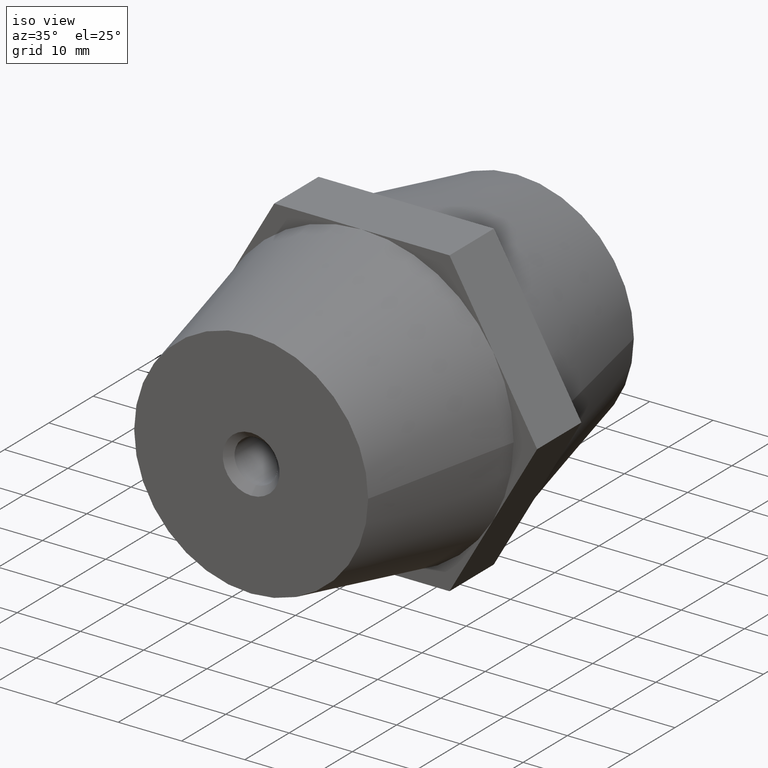
[diagram: clean part render]
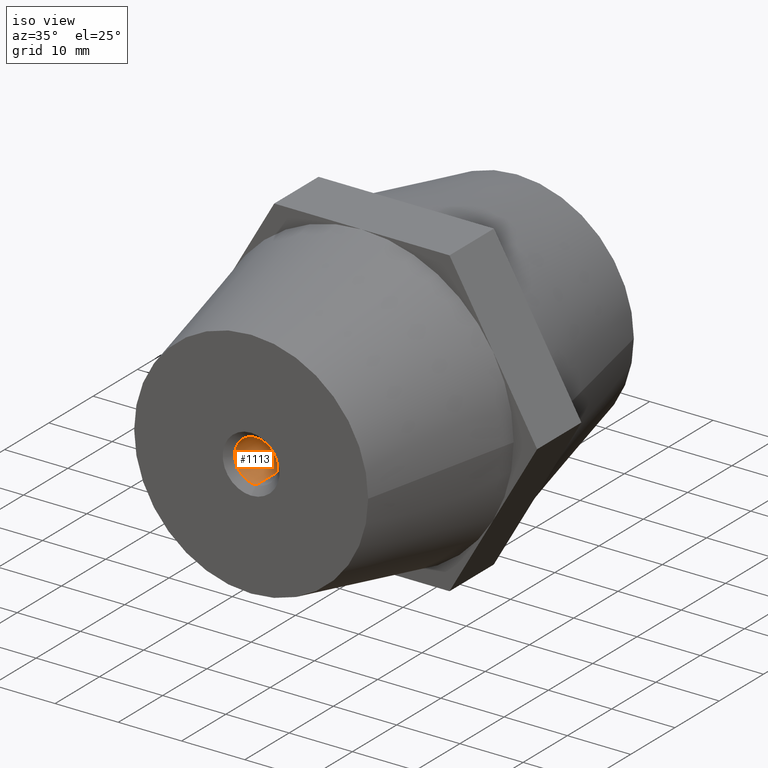
[diagram: same view with one face highlighted and labeled with its STEP entity id]
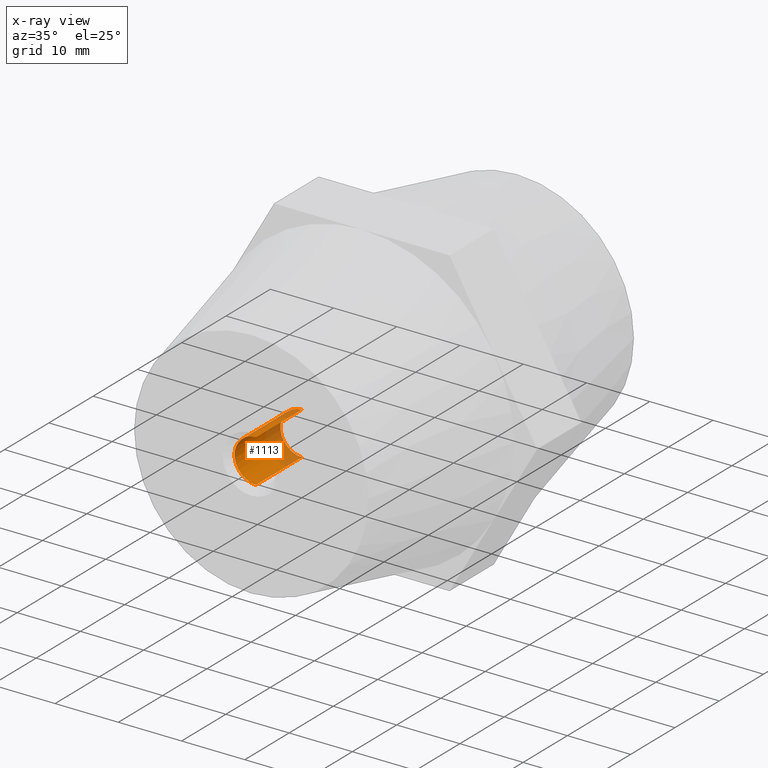
[diagram: x-ray of the same camera — body ghosted, the highlighted face saturated]
A machine part, iso view. The second image highlights one B-rep face of the part: STEP entity #1113.
The next image is the same camera in x-ray: the body ghosted, the highlighted face saturated — about 30% of this face is hidden behind the body in this view.
In plain terms, the highlighted cylindrical surface (edge-blend (fillet) strip) has radius 3.4 mm, axis along (0, -1, -0).
Its self-contained STEP definition (entity closure, byte-faithful):
#3 = CARTESIAN_POINT ( 'NONE',  ( 0.0000000000000000000, 2.540000000000000000, 3.399999999999999900 ) ) ;
#166 = CARTESIAN_POINT ( 'NONE',  ( 4.163799117101000600E-016, 14.00000000000000000, -3.399999999999999900 ) ) ;
#199 = CIRCLE ( 'NONE', #3415, 3.399999999999999900 ) ;
#258 = ORIENTED_EDGE ( 'NONE', *, *, #2852, .F. ) ;
#407 = VECTOR ( 'NONE', #1873, 1000.000000000000000 ) ;
#733 = VERTEX_POINT ( 'NONE', #3653 ) ;
#745 = AXIS2_PLACEMENT_3D ( 'NONE', #1669, #1950, #2252 ) ;
#763 = CYLINDRICAL_SURFACE ( 'NONE', #745, 3.399999999999999900 ) ;
#919 = VERTEX_POINT ( 'NONE', #3 ) ;
#994 = CARTESIAN_POINT ( 'NONE',  ( 0.0000000000000000000, 14.00000000000000000, 3.399999999999999900 ) ) ;
#1066 = EDGE_CURVE ( 'NONE', #919, #733, #2601, .T. ) ;
#1113 = ADVANCED_FACE ( 'NONE', ( #1799 ), #763, .F. ) ;
#1312 = DIRECTION ( 'NONE',  ( 0.0000000000000000000, 0.0000000000000000000, 1.000000000000000000 ) ) ;
#1339 = EDGE_LOOP ( 'NONE', ( #258, #1830, #1461, #2622 ) ) ;
#1461 = ORIENTED_EDGE ( 'NONE', *, *, #3252, .T. ) ;
#1519 = DIRECTION ( 'NONE',  ( 0.0000000000000000000, 1.000000000000000000, 0.0000000000000000000 ) ) ;
#1669 = CARTESIAN_POINT ( 'NONE',  ( 0.0000000000000000000, 14.00000000000000000, 0.0000000000000000000 ) ) ;
#1690 = VERTEX_POINT ( 'NONE', #2931 ) ;
#1799 = FACE_OUTER_BOUND ( 'NONE', #1339, .T. ) ;
#1830 = ORIENTED_EDGE ( 'NONE', *, *, #2542, .T. ) ;
#1834 = DIRECTION ( 'NONE',  ( 0.0000000000000000000, 1.000000000000000000, 0.0000000000000000000 ) ) ;
#1873 = DIRECTION ( 'NONE',  ( 0.0000000000000000000, 1.000000000000000000, 0.0000000000000000000 ) ) ;
#1950 = DIRECTION ( 'NONE',  ( 0.0000000000000000000, 1.000000000000000000, 0.0000000000000000000 ) ) ;
#2011 = AXIS2_PLACEMENT_3D ( 'NONE', #3248, #1519, #1312 ) ;
#2252 = DIRECTION ( 'NONE',  ( 0.0000000000000000000, 0.0000000000000000000, 1.000000000000000000 ) ) ;
#2370 = CARTESIAN_POINT ( 'NONE',  ( 0.0000000000000000000, 12.90000000000000000, 0.0000000000000000000 ) ) ;
#2542 = EDGE_CURVE ( 'NONE', #1690, #2670, #3441, .T. ) ;
#2601 = LINE ( 'NONE', #994, #3672 ) ;
#2622 = ORIENTED_EDGE ( 'NONE', *, *, #1066, .F. ) ;
#2670 = VERTEX_POINT ( 'NONE', #3453 ) ;
#2785 = CIRCLE ( 'NONE', #2011, 3.399999999999999900 ) ;
#2852 = EDGE_CURVE ( 'NONE', #1690, #919, #2785, .T. ) ;
#2931 = CARTESIAN_POINT ( 'NONE',  ( 4.163799117101000600E-016, 2.540000000000000000, -3.399999999999999900 ) ) ;
#3004 = DIRECTION ( 'NONE',  ( 0.0000000000000000000, 1.000000000000000000, 0.0000000000000000000 ) ) ;
#3248 = CARTESIAN_POINT ( 'NONE',  ( 0.0000000000000000000, 2.540000000000000000, 0.0000000000000000000 ) ) ;
#3252 = EDGE_CURVE ( 'NONE', #2670, #733, #199, .T. ) ;
#3276 = DIRECTION ( 'NONE',  ( 0.0000000000000000000, 0.0000000000000000000, 1.000000000000000000 ) ) ;
#3415 = AXIS2_PLACEMENT_3D ( 'NONE', #2370, #1834, #3276 ) ;
#3441 = LINE ( 'NONE', #166, #407 ) ;
#3453 = CARTESIAN_POINT ( 'NONE',  ( 4.163799117101000600E-016, 12.90000000000000000, -3.399999999999999900 ) ) ;
#3653 = CARTESIAN_POINT ( 'NONE',  ( 0.0000000000000000000, 12.90000000000000000, 3.399999999999999900 ) ) ;
#3672 = VECTOR ( 'NONE', #3004, 1000.000000000000000 ) ;